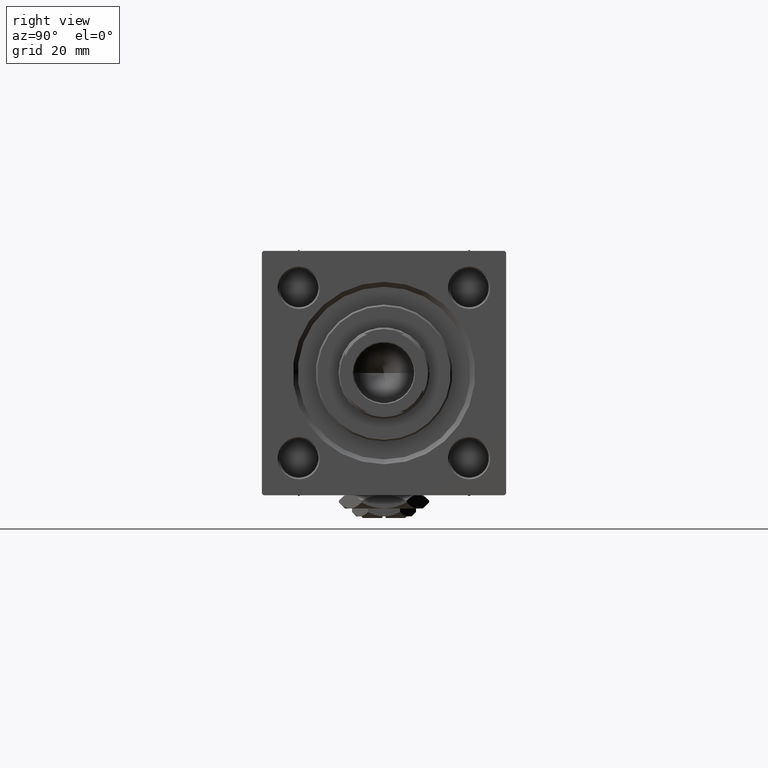
[diagram: clean part render]
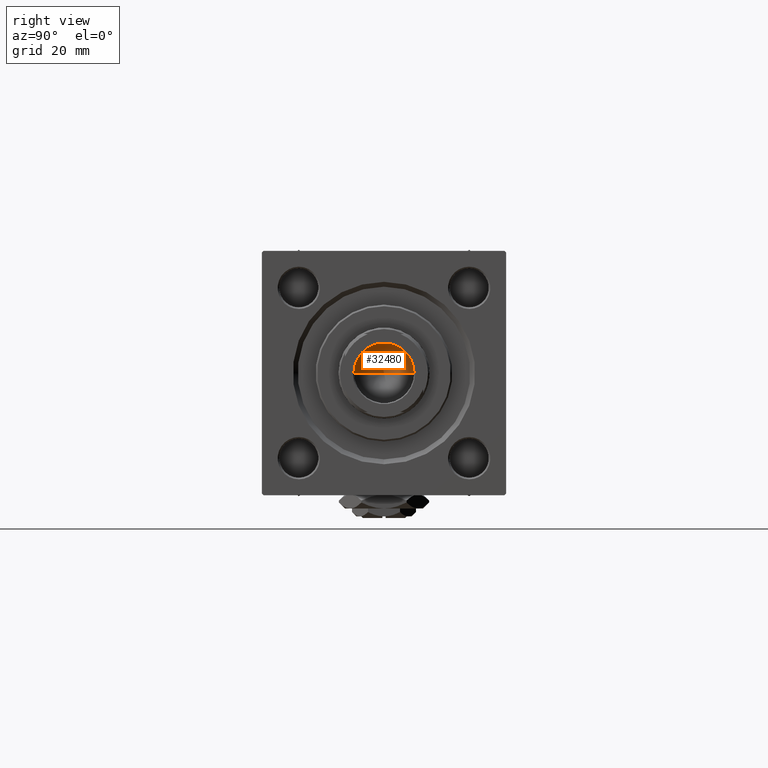
[diagram: same view with one face highlighted and labeled with its STEP entity id]
A machine part, right view. The second image highlights one B-rep face of the part: STEP entity #32480.
In plain terms, the highlighted conical surface has half-angle 59 deg.
Its self-contained STEP definition (entity closure, byte-faithful):
#1140 = AXIS2_PLACEMENT_3D ( 'NONE', #23717, #19783, #39476 ) ;
#2061 = DIRECTION ( 'NONE',  ( 0.8571673007021117785, 0.000000000000000000, 0.5150380749100550437 ) ) ;
#3681 = AXIS2_PLACEMENT_3D ( 'NONE', #4255, #12646, #36251 ) ;
#4255 = CARTESIAN_POINT ( 'NONE',  ( 0.000000000000000000, 0.000000000000000000, 107.0000000000000142 ) ) ;
#4437 = VERTEX_POINT ( 'NONE', #25113 ) ;
#4906 = VECTOR ( 'NONE', #2061, 1000.000000000000000 ) ;
#6228 = LINE ( 'NONE', #9899, #38993 ) ;
#8448 = FACE_OUTER_BOUND ( 'NONE', #47039, .T. ) ;
#9516 = CONICAL_SURFACE ( 'NONE', #3681, 9.249999999999992895, 1.029744258676653423 ) ;
#9899 = CARTESIAN_POINT ( 'NONE',  ( -9.249999999999992895, 1.132798289211300712E-15, 107.0000000000000142 ) ) ;
#10547 = CARTESIAN_POINT ( 'NONE',  ( -9.249999999999992895, 1.132798289211300712E-15, 107.0000000000000142 ) ) ;
#12646 = DIRECTION ( 'NONE',  ( -0.000000000000000000, -0.000000000000000000, 1.000000000000000000 ) ) ;
#14092 = DIRECTION ( 'NONE',  ( -0.8571673007021117785, 1.049727191138617956E-16, 0.5150380749100550437 ) ) ;
#14377 = CARTESIAN_POINT ( 'NONE',  ( 9.249999999999992895, 0.000000000000000000, 107.0000000000000142 ) ) ;
#19783 = DIRECTION ( 'NONE',  ( -0.000000000000000000, -0.000000000000000000, 1.000000000000000000 ) ) ;
#22511 = LINE ( 'NONE', #14377, #4906 ) ;
#22847 = ORIENTED_EDGE ( 'NONE', *, *, #32021, .T. ) ;
#23717 = CARTESIAN_POINT ( 'NONE',  ( 0.000000000000000000, 0.000000000000000000, 107.0000000000000142 ) ) ;
#25113 = CARTESIAN_POINT ( 'NONE',  ( 9.249999999999992895, 0.000000000000000000, 107.0000000000000142 ) ) ;
#27867 = ORIENTED_EDGE ( 'NONE', *, *, #39687, .T. ) ;
#30300 = VERTEX_POINT ( 'NONE', #10547 ) ;
#30659 = CARTESIAN_POINT ( 'NONE',  ( -9.769621978240258809E-15, 0.000000000000000000, 101.4420392739950785 ) ) ;
#32021 = EDGE_CURVE ( 'NONE', #30300, #4437, #41369, .T. ) ;
#32480 = ADVANCED_FACE ( 'NONE', ( #8448 ), #9516, .F. ) ;
#34704 = VERTEX_POINT ( 'NONE', #30659 ) ;
#36251 = DIRECTION ( 'NONE',  ( 1.000000000000000000, 0.000000000000000000, 0.000000000000000000 ) ) ;
#38993 = VECTOR ( 'NONE', #14092, 1000.000000000000000 ) ;
#39476 = DIRECTION ( 'NONE',  ( 1.000000000000000000, 0.000000000000000000, 0.000000000000000000 ) ) ;
#39687 = EDGE_CURVE ( 'NONE', #34704, #30300, #6228, .T. ) ;
#41369 = CIRCLE ( 'NONE', #1140, 9.249999999999992895 ) ;
#46461 = ORIENTED_EDGE ( 'NONE', *, *, #51080, .F. ) ;
#47039 = EDGE_LOOP ( 'NONE', ( #46461, #27867, #22847 ) ) ;
#51080 = EDGE_CURVE ( 'NONE', #34704, #4437, #22511, .T. ) ;